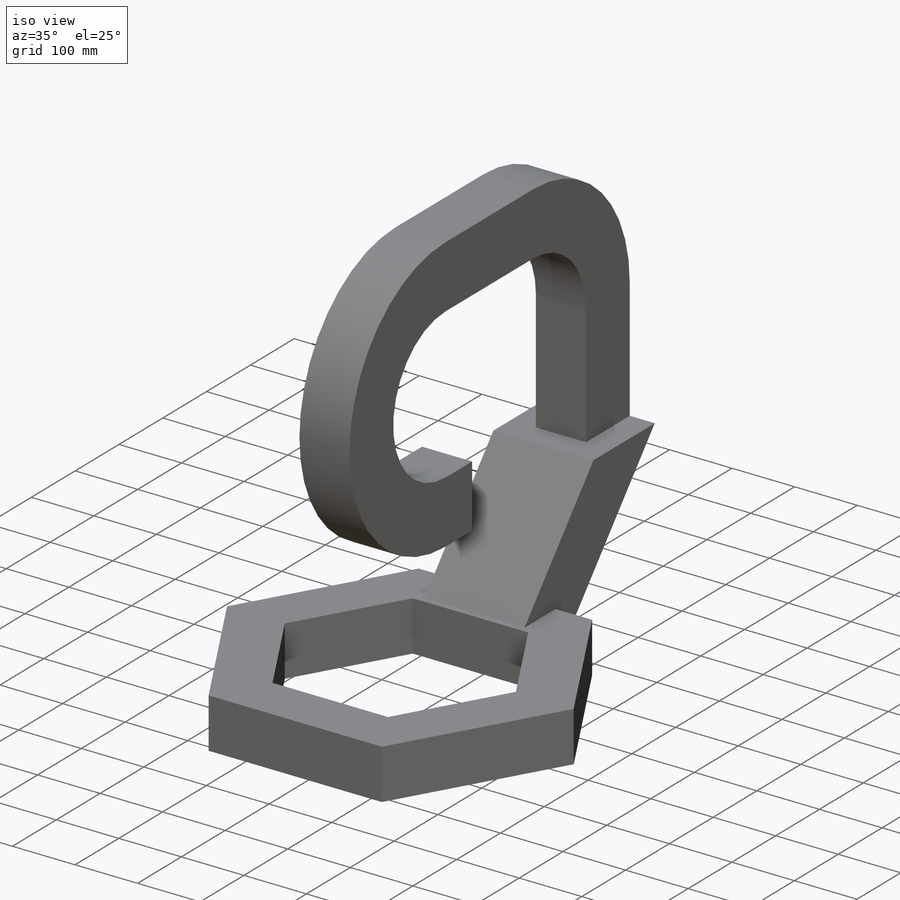
[diagram: iso view]
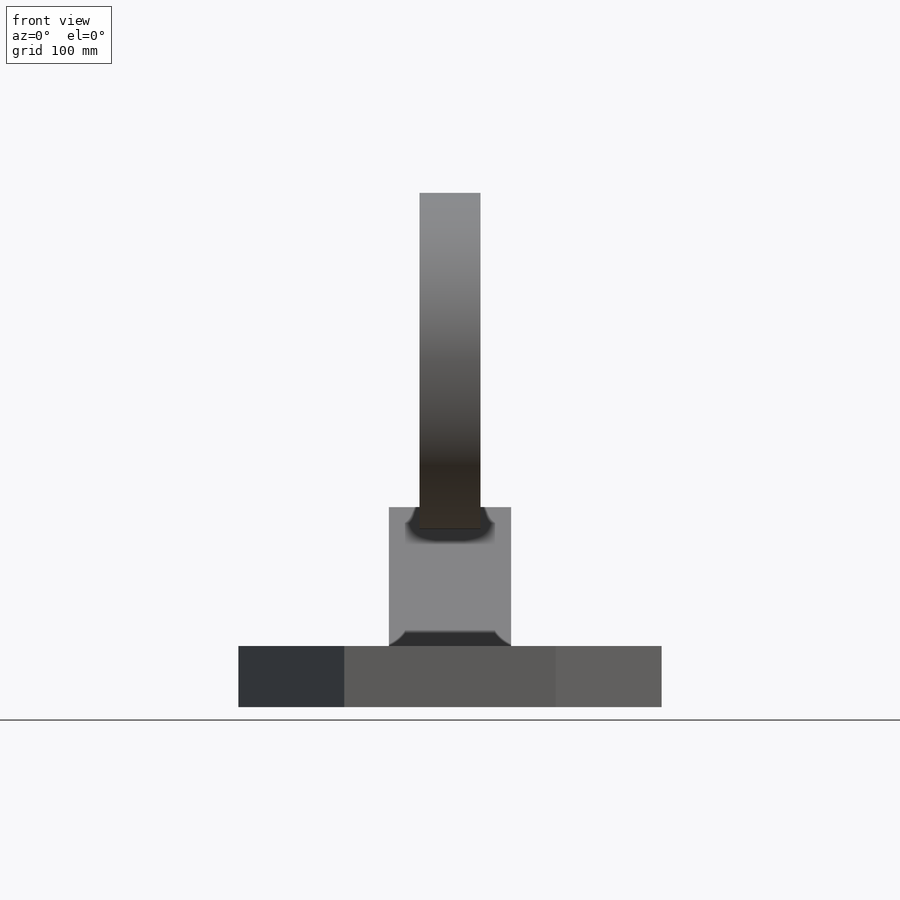
[diagram: front view]
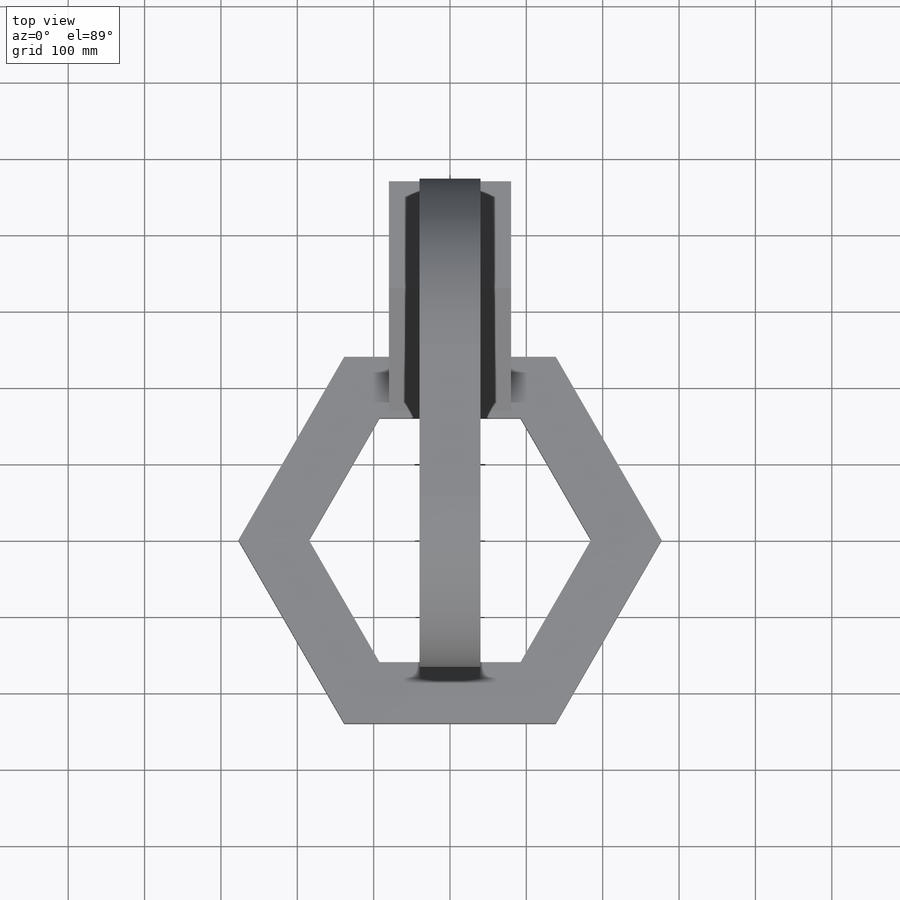
[diagram: top view]
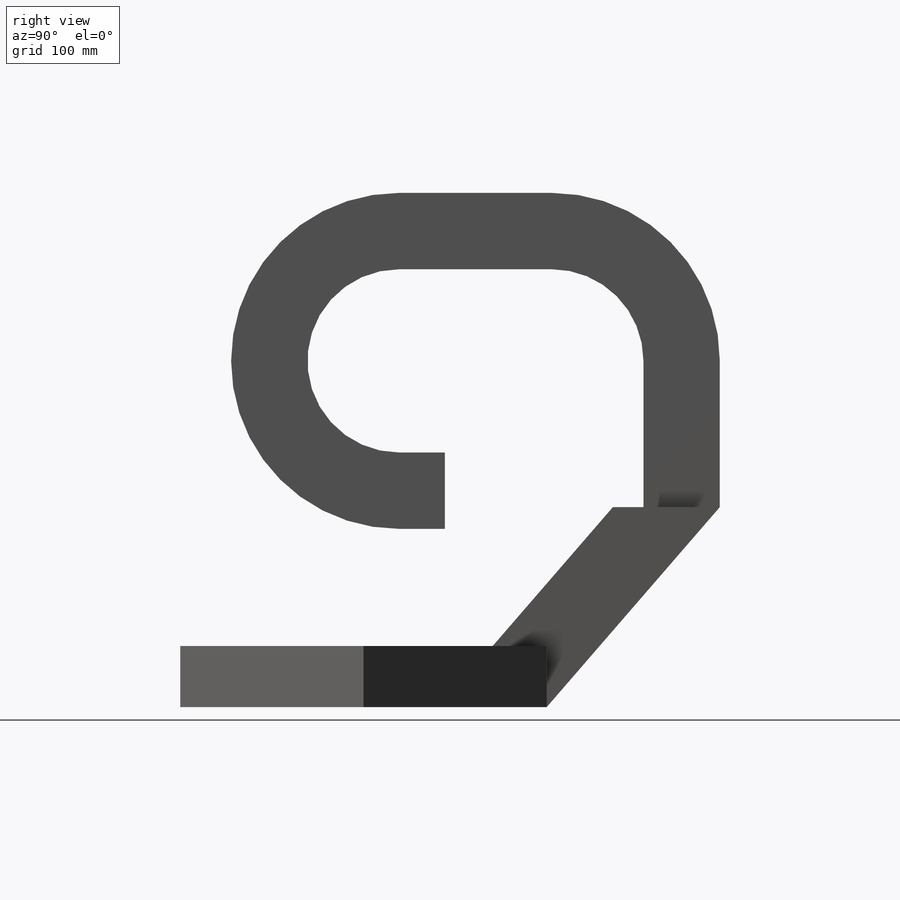
[diagram: right view]
SOLIDWORKS PART (.sldprt)
format: sldprt  version: not decoded by parser v0  size: 346,112 bytes
history: native  units: mm
features: plane x3, sketch x3, extrude x3, material x1, fillet x1 (+8 scaffold rows collapsed)
feature tree (19):
  scaffold x8  (default folders/planes/origin — collapsed)
  material  "Material <sin especificar>"
  plane  "Alzado"
  plane  "Planta"
  plane  "Vista lateral"
  sketch  "Croquis1"  dims[D1=277.1mm D2=80.0mm]
  extrude  "Saliente-Extruir1"  Depth=80mm
  sketch  "Croquis2"  dims[c1.D1=226.7mm c1.D2=261.9mm c1.D3=140.0mm c2.D1=226.7mm c2.D2=261.9mm]
  extrude  "Saliente-Extruir2"  Depth=160mm
  sketch  "Croquis3"  dims[c1.D1=220.0mm c1.D2=60.0mm c1.D3=373.4mm c1.D5=200.0mm c2.D3=373.4mm c2.D4=100.0mm]
  extrude  "Saliente-Extruir4"  Depth=80mm
  fillet  "Redondeo6"  Radius=6mm
decode coverage: 7 of 7 modeling features carry decoded parameters
note: suppression state not decoded; provenance and decode notes live in map.json
